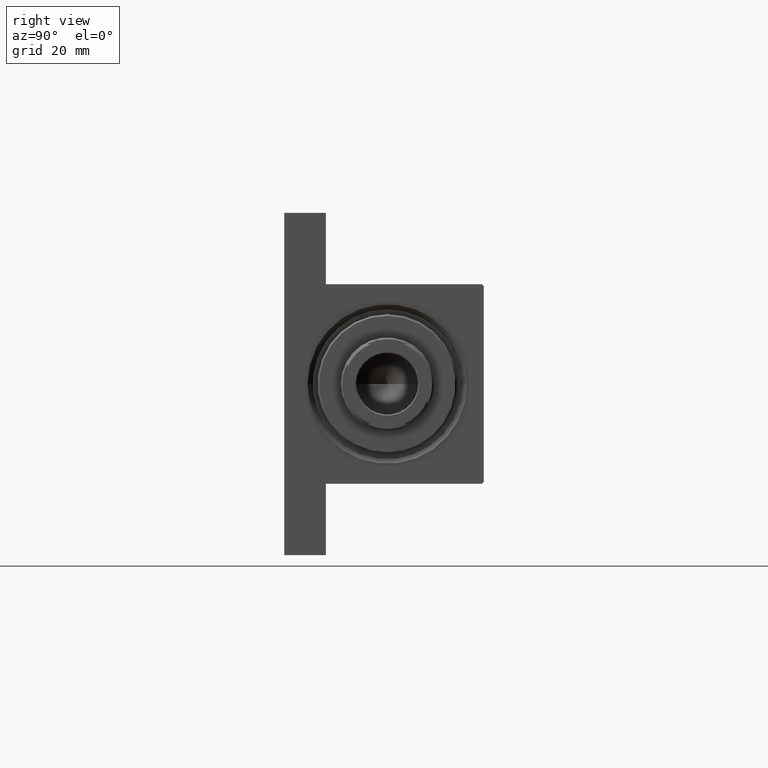
[diagram: clean part render]
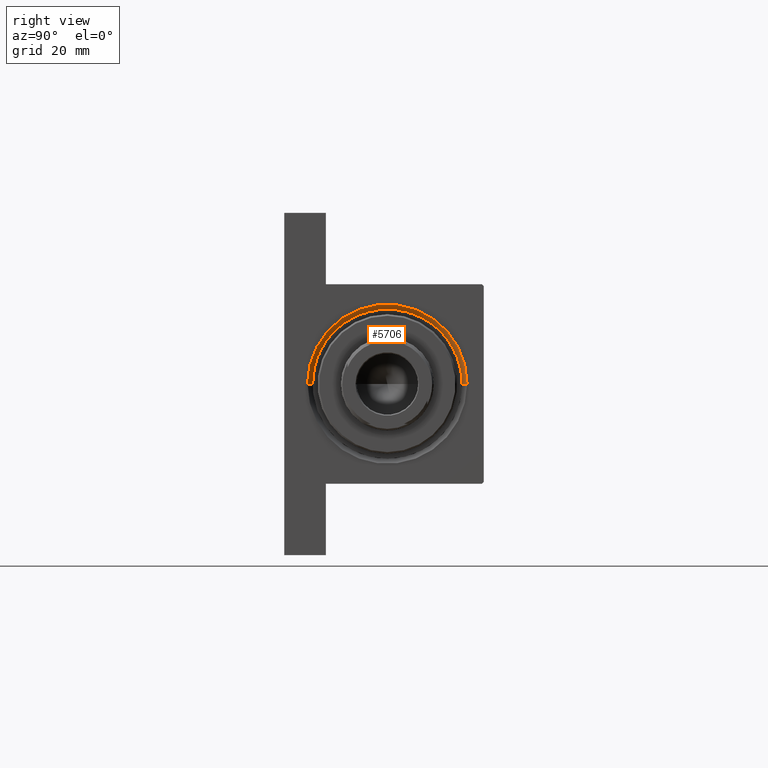
[diagram: same view with one face highlighted and labeled with its STEP entity id]
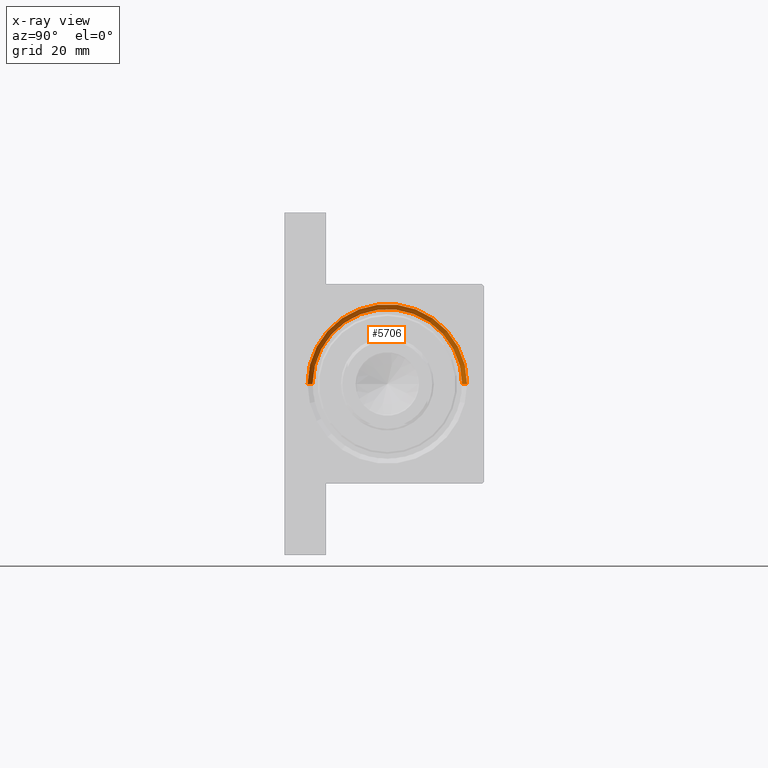
[diagram: x-ray of the same camera — body ghosted, the highlighted face saturated]
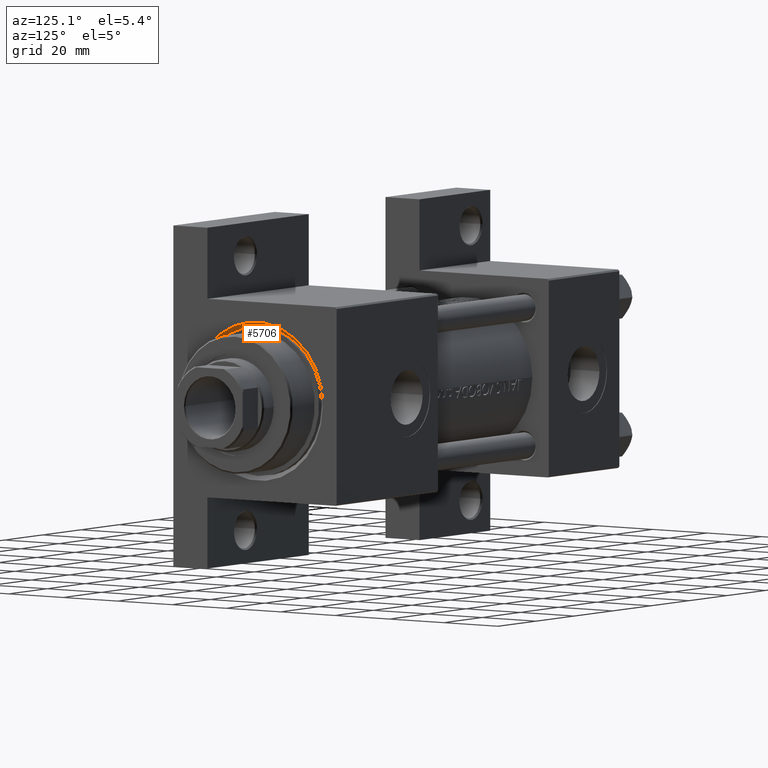
[diagram: same view with one face highlighted and labeled with its STEP entity id]
A machine part, right view. The second image highlights one B-rep face of the part: STEP entity #5706.
The next image is the same camera in x-ray: the body ghosted, the highlighted face saturated — about 0% of this face is hidden behind the body in this view.
A second angle (auxiliary view) of the same face is appended — the face is thin or edge-on in the first view.
In plain terms, the highlighted conical surface has half-angle 45 deg.
Its self-contained STEP definition (entity closure, byte-faithful):
#3231 = ORIENTED_EDGE ( 'NONE', *, *, #12591, .F. ) ;
#5619 = EDGE_CURVE ( 'NONE', #20382, #25064, #19920, .T. ) ;
#5706 = ADVANCED_FACE ( 'NONE', ( #39531 ), #43011, .F. ) ;
#6172 = CARTESIAN_POINT ( 'NONE',  ( 148.0000000000000000, 2.939152317953652628E-15, 25.00000000000004619 ) ) ;
#6330 = DIRECTION ( 'NONE',  ( 1.000000000000000000, 0.000000000000000000, 0.000000000000000000 ) ) ;
#6991 = AXIS2_PLACEMENT_3D ( 'NONE', #36200, #17647, #29432 ) ;
#9094 = CARTESIAN_POINT ( 'NONE',  ( 146.4999999999999432, 0.000000000000000000, -21.49999999999999645 ) ) ;
#11112 = DIRECTION ( 'NONE',  ( 1.000000000000000000, 0.000000000000000000, 0.000000000000000000 ) ) ;
#12591 = EDGE_CURVE ( 'NONE', #36360, #40262, #32343, .T. ) ;
#14570 = AXIS2_PLACEMENT_3D ( 'NONE', #26009, #11112, #40717 ) ;
#17647 = DIRECTION ( 'NONE',  ( -1.000000000000000000, 0.000000000000000000, -0.000000000000000000 ) ) ;
#19277 = CARTESIAN_POINT ( 'NONE',  ( 146.4999999999999432, 2.755455298081545172E-15, 23.50000000000001066 ) ) ;
#19920 = CIRCLE ( 'NONE', #46878, 22.50000000000000355 ) ;
#20245 = EDGE_CURVE ( 'NONE', #20382, #40262, #20774, .T. ) ;
#20382 = VERTEX_POINT ( 'NONE', #19277 ) ;
#20774 = LINE ( 'NONE', #42225, #44134 ) ;
#23541 = LINE ( 'NONE', #41868, #32926 ) ;
#24138 = DIRECTION ( 'NONE',  ( 0.7071067811865524577, 8.659560562354874926E-17, 0.7071067811865426878 ) ) ;
#25064 = VERTEX_POINT ( 'NONE', #9094 ) ;
#26009 = CARTESIAN_POINT ( 'NONE',  ( 146.4999999999999432, 0.000000000000000000, 1.000000000000007772 ) ) ;
#27722 = DIRECTION ( 'NONE',  ( 0.000000000000000000, 0.000000000000000000, 1.000000000000000000 ) ) ;
#29432 = DIRECTION ( 'NONE',  ( 0.000000000000000000, 0.000000000000000000, 1.000000000000000000 ) ) ;
#31577 = CARTESIAN_POINT ( 'NONE',  ( 148.0000000000000000, 0.000000000000000000, -23.00000000000003197 ) ) ;
#32343 = CIRCLE ( 'NONE', #6991, 24.00000000000003908 ) ;
#32488 = ORIENTED_EDGE ( 'NONE', *, *, #5619, .F. ) ;
#32926 = VECTOR ( 'NONE', #45235, 1000.000000000000000 ) ;
#33421 = ORIENTED_EDGE ( 'NONE', *, *, #44899, .F. ) ;
#33928 = EDGE_LOOP ( 'NONE', ( #32488, #46056, #3231, #33421 ) ) ;
#36200 = CARTESIAN_POINT ( 'NONE',  ( 148.0000000000000000, 0.000000000000000000, 1.000000000000007772 ) ) ;
#36360 = VERTEX_POINT ( 'NONE', #31577 ) ;
#39531 = FACE_OUTER_BOUND ( 'NONE', #33928, .T. ) ;
#40262 = VERTEX_POINT ( 'NONE', #6172 ) ;
#40717 = DIRECTION ( 'NONE',  ( 0.000000000000000000, 0.000000000000000000, -1.000000000000000000 ) ) ;
#41868 = CARTESIAN_POINT ( 'NONE',  ( 146.4999999999999432, 0.000000000000000000, -21.49999999999999645 ) ) ;
#42225 = CARTESIAN_POINT ( 'NONE',  ( 146.4999999999999432, 2.755455298081545172E-15, 23.50000000000001066 ) ) ;
#43011 = CONICAL_SURFACE ( 'NONE', #14570, 22.50000000000000355, 0.7853981633974415066 ) ;
#44134 = VECTOR ( 'NONE', #24138, 1000.000000000000000 ) ;
#44899 = EDGE_CURVE ( 'NONE', #25064, #36360, #23541, .T. ) ;
#45235 = DIRECTION ( 'NONE',  ( 0.7071067811865524577, 0.000000000000000000, -0.7071067811865426878 ) ) ;
#46054 = CARTESIAN_POINT ( 'NONE',  ( 146.4999999999999432, 0.000000000000000000, 1.000000000000007772 ) ) ;
#46056 = ORIENTED_EDGE ( 'NONE', *, *, #20245, .T. ) ;
#46878 = AXIS2_PLACEMENT_3D ( 'NONE', #46054, #6330, #27722 ) ;